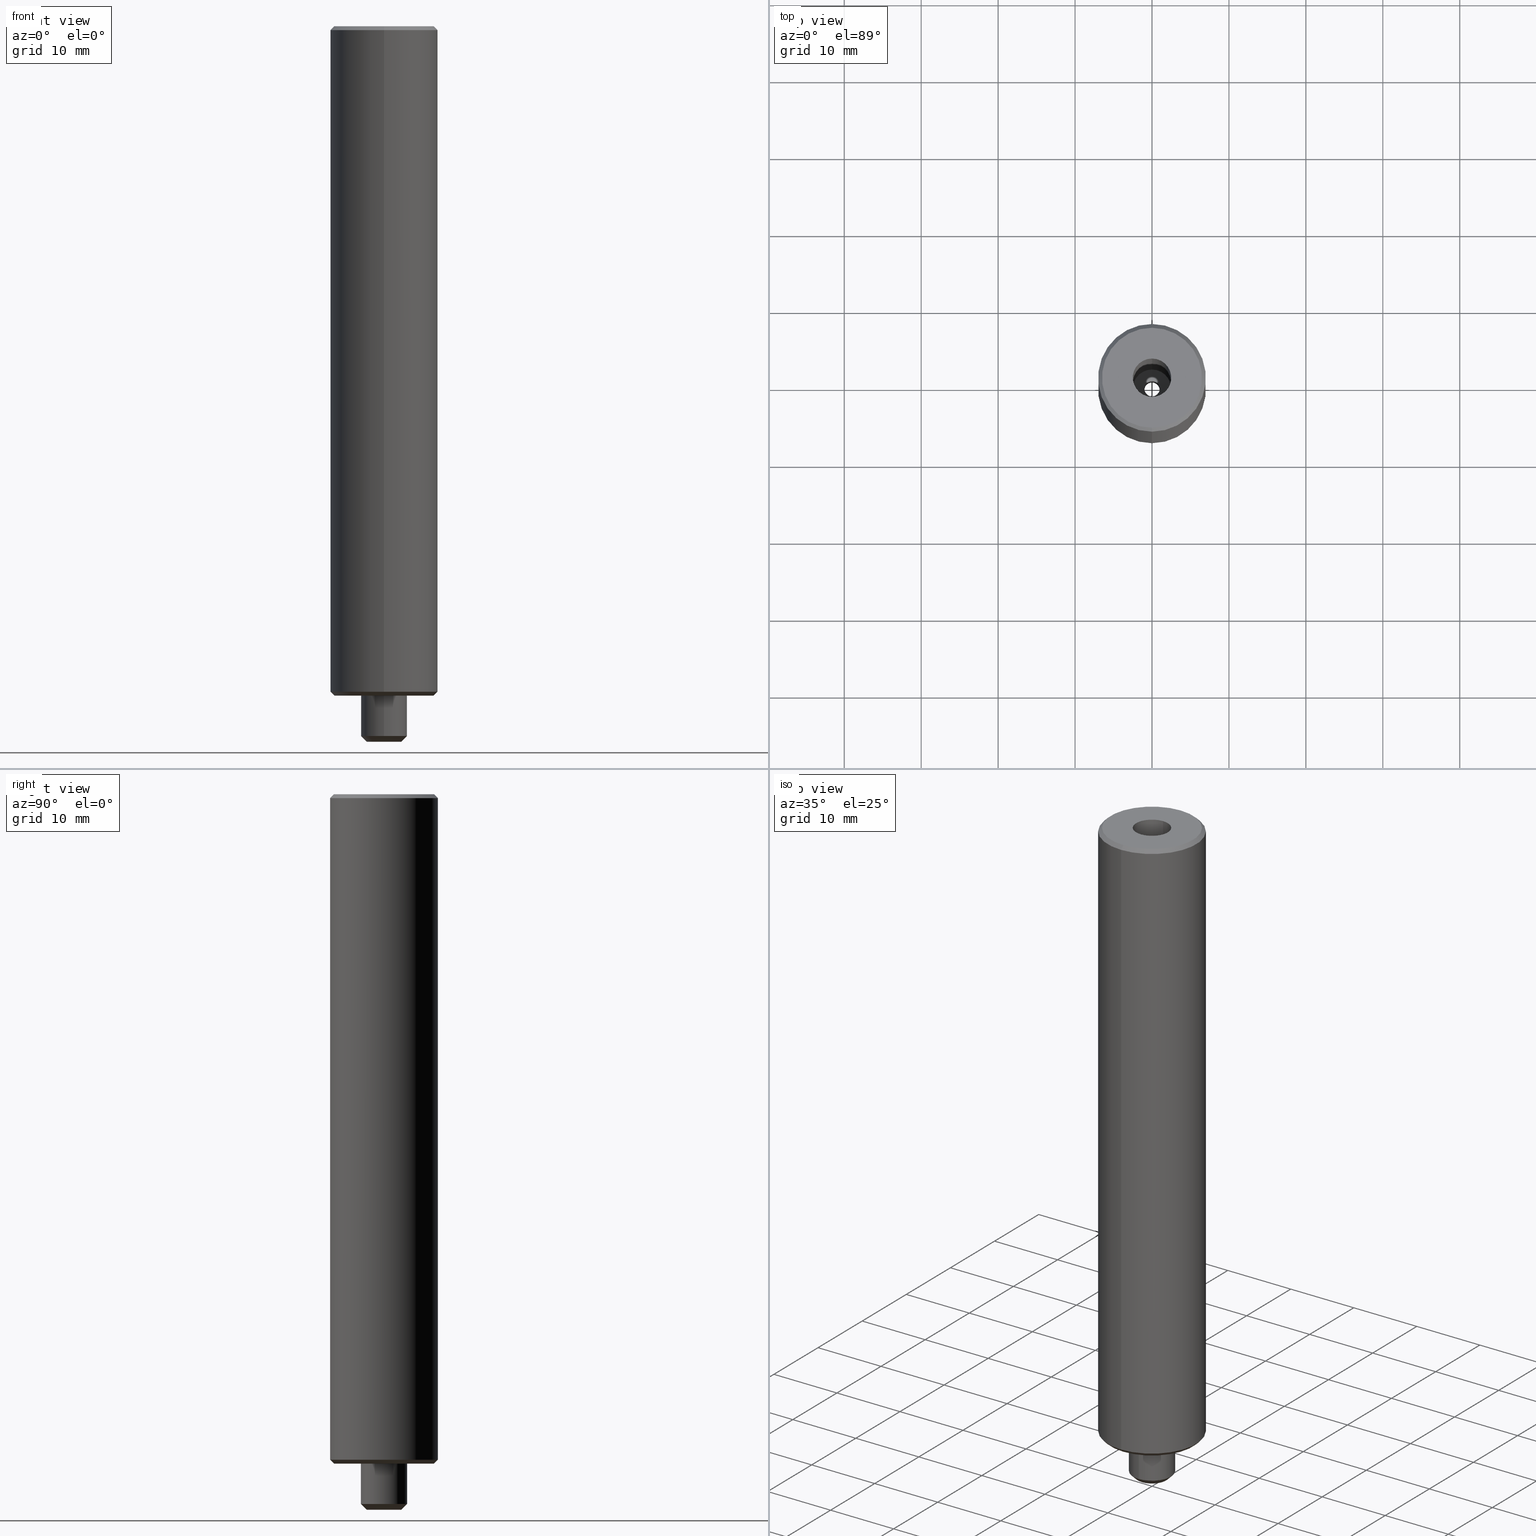
[diagram: canonical four-view strip — front | top / right | iso, engineering-drawing reading convention]
A machine part, canonical four-view strip (front | top / right | iso — engineering-drawing reading convention). The complete STEP part file that produces these views, byte-faithful:
ISO-10303-21;
HEADER;
FILE_DESCRIPTION(('no description'),'unknown implementation level');
FILE_NAME('975FEDEF-CCB9-4AB0-B80A-A7A66155BD4D_export.stp','  ',('CIMSOURCE GmbH'),('CADClick - KiM GmbH - www.kimweb.de'),'unknown preprocess','ACIS','unknown authorization');
FILE_SCHEMA(('automotive_design'));
ENDSEC;
DATA;
#1=MECHANICAL_DESIGN_GEOMETRIC_PRESENTATION_REPRESENTATION(' ',(#10,#11,#12,#13,#14,#15,#16,#17,#18,#19,#20,#21,#22,#23,#24,#25,#26,#27,#28,#29,#30,#31,#32,#33,#34,#35,#36,#37,#38,#39,#40,#41,#42,#43,#44,#45,#46,#47,#48,#49,#50,#51,#52,#53,#54,#55,#56,#57,#58,#59,#60,#61,#62,#63,#64,#65,#66,#67,#68,#69,#70,#71,#72,#73,#74,#75,#76,#77,#78,#79,#80,#81,#82,#83,#84,#85,#86,#87,#88,#89),#6);
#2=PRODUCT_DEFINITION_CONTEXT('',#90,'design');
#3=APPLICATION_PROTOCOL_DEFINITION('INTERNATIONAL STANDARD','automotive_design',1994,#90);
#4=PRODUCT_CATEGORY_RELATIONSHIP('NONE','NONE',#91,#92);
#5=SHAPE_DEFINITION_REPRESENTATION(#93,#94);
#6= (GEOMETRIC_REPRESENTATION_CONTEXT(3)GLOBAL_UNCERTAINTY_ASSIGNED_CONTEXT((#97))GLOBAL_UNIT_ASSIGNED_CONTEXT((#99,#100,#101))REPRESENTATION_CONTEXT('NONE','WORKSPACE'));
#10=STYLED_ITEM('',(#103),#104);
#11=STYLED_ITEM('',(#105),#106);
#12=STYLED_ITEM('',(#107),#108);
#13=STYLED_ITEM('',(#109),#110);
#14=STYLED_ITEM('',(#111),#112);
#15=STYLED_ITEM('',(#113),#114);
#16=STYLED_ITEM('',(#115),#116);
#17=STYLED_ITEM('',(#117),#118);
#18=STYLED_ITEM('',(#119),#120);
#19=STYLED_ITEM('',(#121),#122);
#20=STYLED_ITEM('',(#123),#124);
#21=STYLED_ITEM('',(#125),#126);
#22=STYLED_ITEM('',(#127),#128);
#23=STYLED_ITEM('',(#129),#130);
#24=STYLED_ITEM('',(#131),#132);
#25=STYLED_ITEM('',(#133),#134);
#26=STYLED_ITEM('',(#135),#136);
#27=STYLED_ITEM('',(#137),#138);
#28=STYLED_ITEM('',(#139),#140);
#29=STYLED_ITEM('',(#141),#142);
#30=STYLED_ITEM('',(#143),#144);
#31=STYLED_ITEM('',(#145),#146);
#32=STYLED_ITEM('',(#147),#148);
#33=STYLED_ITEM('',(#149),#150);
#34=STYLED_ITEM('',(#151),#152);
#35=STYLED_ITEM('',(#153),#154);
#36=STYLED_ITEM('',(#155),#156);
#37=STYLED_ITEM('',(#157),#158);
#38=STYLED_ITEM('',(#159),#160);
#39=STYLED_ITEM('',(#161),#162);
#40=STYLED_ITEM('',(#163),#164);
#41=STYLED_ITEM('',(#165),#166);
#42=STYLED_ITEM('',(#167),#168);
#43=STYLED_ITEM('',(#169),#170);
#44=STYLED_ITEM('',(#171),#172);
#45=STYLED_ITEM('',(#173),#174);
#46=STYLED_ITEM('',(#175),#176);
#47=STYLED_ITEM('',(#177),#178);
#48=STYLED_ITEM('',(#179),#180);
#49=STYLED_ITEM('',(#181),#182);
#50=STYLED_ITEM('',(#183),#184);
#51=STYLED_ITEM('',(#185),#186);
#52=STYLED_ITEM('',(#187),#188);
#53=STYLED_ITEM('',(#189),#190);
#54=STYLED_ITEM('',(#191),#192);
#55=STYLED_ITEM('',(#193),#194);
#56=STYLED_ITEM('',(#195),#196);
#57=STYLED_ITEM('',(#197),#198);
#58=STYLED_ITEM('',(#199),#200);
#59=STYLED_ITEM('',(#201),#202);
#60=STYLED_ITEM('',(#203),#204);
#61=STYLED_ITEM('',(#205),#206);
#62=STYLED_ITEM('',(#207),#208);
#63=STYLED_ITEM('',(#209),#210);
#64=STYLED_ITEM('',(#211),#212);
#65=STYLED_ITEM('',(#213),#214);
#66=STYLED_ITEM('',(#215),#216);
#67=STYLED_ITEM('',(#217),#218);
#68=STYLED_ITEM('',(#219),#220);
#69=STYLED_ITEM('',(#221),#222);
#70=STYLED_ITEM('',(#223),#224);
#71=STYLED_ITEM('',(#225),#226);
#72=STYLED_ITEM('',(#227),#228);
#73=STYLED_ITEM('',(#229),#230);
#74=STYLED_ITEM('',(#231),#232);
#75=STYLED_ITEM('',(#233),#234);
#76=STYLED_ITEM('',(#235),#236);
#77=STYLED_ITEM('',(#237),#238);
#78=STYLED_ITEM('',(#239),#240);
#79=STYLED_ITEM('',(#241),#242);
#80=STYLED_ITEM('',(#243),#244);
#81=STYLED_ITEM('',(#245),#246);
#82=STYLED_ITEM('',(#247),#248);
#83=STYLED_ITEM('',(#249),#250);
#84=STYLED_ITEM('',(#251),#252);
#85=STYLED_ITEM('',(#253),#254);
#86=STYLED_ITEM('',(#255),#256);
#87=STYLED_ITEM('',(#257),#258);
#88=STYLED_ITEM('',(#259),#260);
#89=STYLED_ITEM('',(#261),#262);
#90=APPLICATION_CONTEXT(' ');
#91=PRODUCT_CATEGORY('part','NONE');
#92=PRODUCT_RELATED_PRODUCT_CATEGORY('detail',' ',(#263));
#93=PRODUCT_DEFINITION_SHAPE('NONE','NONE',#264);
#94=ADVANCED_BREP_SHAPE_REPRESENTATION('NONE',(#228,#265),#6);
#97=UNCERTAINTY_MEASURE_WITH_UNIT(LENGTH_MEASURE(1.0E-006),#99,'','');
#99= (CONVERSION_BASED_UNIT('MILLIMETRE',#268)LENGTH_UNIT()NAMED_UNIT(#271));
#100= (NAMED_UNIT(#273)PLANE_ANGLE_UNIT()SI_UNIT($,.RADIAN.));
#101= (NAMED_UNIT(#273)SOLID_ANGLE_UNIT()SI_UNIT($,.STERADIAN.));
#103=PRESENTATION_STYLE_ASSIGNMENT((#279));
#104=EDGE_CURVE('NONE',#134,#198,#280,.T.);
#105=PRESENTATION_STYLE_ASSIGNMENT((#281));
#106=VERTEX_POINT('NONE',#282);
#107=PRESENTATION_STYLE_ASSIGNMENT((#283));
#108=EDGE_CURVE('NONE',#128,#138,#284,.T.);
#109=PRESENTATION_STYLE_ASSIGNMENT((#285));
#110=EDGE_CURVE('NONE',#152,#170,#286,.T.);
#111=PRESENTATION_STYLE_ASSIGNMENT((#287));
#112=ADVANCED_FACE('NONE',(#288),#289,.F.);
#113=PRESENTATION_STYLE_ASSIGNMENT((#290));
#114=ADVANCED_FACE('NONE',(#291),#292,.F.);
#115=PRESENTATION_STYLE_ASSIGNMENT((#293));
#116=EDGE_CURVE('NONE',#156,#186,#294,.T.);
#117=PRESENTATION_STYLE_ASSIGNMENT((#295));
#118=ADVANCED_FACE('NONE',(#296,#297),#298,.F.);
#119=PRESENTATION_STYLE_ASSIGNMENT((#299));
#120=EDGE_CURVE('NONE',#166,#248,#300,.T.);
#121=PRESENTATION_STYLE_ASSIGNMENT((#301));
#122=EDGE_CURVE('NONE',#254,#238,#302,.T.);
#123=PRESENTATION_STYLE_ASSIGNMENT((#303));
#124=ADVANCED_FACE('NONE',(#304),#305,.T.);
#125=PRESENTATION_STYLE_ASSIGNMENT((#306));
#126=EDGE_CURVE('NONE',#170,#212,#307,.T.);
#127=PRESENTATION_STYLE_ASSIGNMENT((#308));
#128=VERTEX_POINT('NONE',#309);
#129=PRESENTATION_STYLE_ASSIGNMENT((#310));
#130=EDGE_CURVE('NONE',#244,#190,#311,.T.);
#131=PRESENTATION_STYLE_ASSIGNMENT((#312));
#132=EDGE_CURVE('NONE',#262,#260,#313,.T.);
#133=PRESENTATION_STYLE_ASSIGNMENT((#314));
#134=VERTEX_POINT('NONE',#315);
#135=PRESENTATION_STYLE_ASSIGNMENT((#316));
#136=ADVANCED_FACE('NONE',(#317),#318,.T.);
#137=PRESENTATION_STYLE_ASSIGNMENT((#319));
#138=VERTEX_POINT('NONE',#320);
#139=PRESENTATION_STYLE_ASSIGNMENT((#321));
#140=EDGE_CURVE('NONE',#138,#254,#322,.T.);
#141=PRESENTATION_STYLE_ASSIGNMENT((#323));
#142=EDGE_CURVE('NONE',#190,#166,#324,.T.);
#143=PRESENTATION_STYLE_ASSIGNMENT((#325));
#144=EDGE_CURVE('NONE',#160,#248,#326,.T.);
#145=PRESENTATION_STYLE_ASSIGNMENT((#327));
#146=ADVANCED_FACE('NONE',(#328),#329,.T.);
#147=PRESENTATION_STYLE_ASSIGNMENT((#330));
#148=ADVANCED_FACE('NONE',(#331),#332,.T.);
#149=PRESENTATION_STYLE_ASSIGNMENT((#333));
#150=ADVANCED_FACE('NONE',(#334),#335,.F.);
#151=PRESENTATION_STYLE_ASSIGNMENT((#336));
#152=VERTEX_POINT('NONE',#337);
#153=PRESENTATION_STYLE_ASSIGNMENT((#338));
#154=EDGE_CURVE('NONE',#212,#254,#339,.T.);
#155=PRESENTATION_STYLE_ASSIGNMENT((#340));
#156=VERTEX_POINT('NONE',#341);
#157=PRESENTATION_STYLE_ASSIGNMENT((#342));
#158=VERTEX_POINT('NONE',#343);
#159=PRESENTATION_STYLE_ASSIGNMENT((#344));
#160=VERTEX_POINT('NONE',#345);
#161=PRESENTATION_STYLE_ASSIGNMENT((#346));
#162=ADVANCED_FACE('NONE',(#347,#348),#349,.F.);
#163=PRESENTATION_STYLE_ASSIGNMENT((#350));
#164=EDGE_CURVE('NONE',#262,#134,#351,.T.);
#165=PRESENTATION_STYLE_ASSIGNMENT((#352));
#166=VERTEX_POINT('NONE',#353);
#167=PRESENTATION_STYLE_ASSIGNMENT((#354));
#168=EDGE_CURVE('NONE',#152,#176,#355,.T.);
#169=PRESENTATION_STYLE_ASSIGNMENT((#356));
#170=VERTEX_POINT('NONE',#357);
#171=PRESENTATION_STYLE_ASSIGNMENT((#358));
#172=ADVANCED_FACE('NONE',(#359),#360,.F.);
#173=PRESENTATION_STYLE_ASSIGNMENT((#361));
#174=ADVANCED_FACE('NONE',(#362,#363),#364,.F.);
#175=PRESENTATION_STYLE_ASSIGNMENT((#365));
#176=VERTEX_POINT('NONE',#366);
#177=PRESENTATION_STYLE_ASSIGNMENT((#367));
#178=EDGE_CURVE('NONE',#198,#134,#368,.T.);
#179=PRESENTATION_STYLE_ASSIGNMENT((#369));
#180=ADVANCED_FACE('NONE',(#370),#371,.T.);
#181=PRESENTATION_STYLE_ASSIGNMENT((#372));
#182=EDGE_CURVE('NONE',#234,#260,#373,.T.);
#183=PRESENTATION_STYLE_ASSIGNMENT((#374));
#184=EDGE_CURVE('NONE',#186,#156,#375,.T.);
#185=PRESENTATION_STYLE_ASSIGNMENT((#376));
#186=VERTEX_POINT('NONE',#377);
#187=PRESENTATION_STYLE_ASSIGNMENT((#378));
#188=ADVANCED_FACE('NONE',(#379),#380,.F.);
#189=PRESENTATION_STYLE_ASSIGNMENT((#381));
#190=VERTEX_POINT('NONE',#382);
#191=PRESENTATION_STYLE_ASSIGNMENT((#383));
#192=EDGE_CURVE('NONE',#138,#128,#384,.T.);
#193=PRESENTATION_STYLE_ASSIGNMENT((#385));
#194=EDGE_CURVE('NONE',#128,#238,#386,.T.);
#195=PRESENTATION_STYLE_ASSIGNMENT((#387));
#196=EDGE_CURVE('NONE',#260,#262,#388,.T.);
#197=PRESENTATION_STYLE_ASSIGNMENT((#389));
#198=VERTEX_POINT('NONE',#390);
#199=PRESENTATION_STYLE_ASSIGNMENT((#391));
#200=EDGE_CURVE('NONE',#260,#198,#392,.T.);
#201=PRESENTATION_STYLE_ASSIGNMENT((#393));
#202=EDGE_CURVE('NONE',#238,#254,#394,.T.);
#203=PRESENTATION_STYLE_ASSIGNMENT((#395));
#204=EDGE_CURVE('NONE',#176,#238,#396,.T.);
#205=PRESENTATION_STYLE_ASSIGNMENT((#397));
#206=EDGE_CURVE('NONE',#248,#160,#398,.T.);
#207=PRESENTATION_STYLE_ASSIGNMENT((#399));
#208=ADVANCED_FACE('NONE',(#400),#401,.T.);
#209=PRESENTATION_STYLE_ASSIGNMENT((#402));
#210=EDGE_CURVE('NONE',#106,#262,#403,.T.);
#211=PRESENTATION_STYLE_ASSIGNMENT((#404));
#212=VERTEX_POINT('NONE',#405);
#213=PRESENTATION_STYLE_ASSIGNMENT((#406));
#214=ADVANCED_FACE('NONE',(#407),#408,.T.);
#215=PRESENTATION_STYLE_ASSIGNMENT((#409));
#216=EDGE_CURVE('NONE',#190,#160,#410,.T.);
#217=PRESENTATION_STYLE_ASSIGNMENT((#411));
#218=EDGE_CURVE('NONE',#158,#166,#412,.T.);
#219=PRESENTATION_STYLE_ASSIGNMENT((#413));
#220=EDGE_CURVE('NONE',#234,#106,#414,.T.);
#221=PRESENTATION_STYLE_ASSIGNMENT((#415));
#222=ADVANCED_FACE('NONE',(#416),#417,.T.);
#223=PRESENTATION_STYLE_ASSIGNMENT((#418));
#224=EDGE_CURVE('NONE',#244,#158,#419,.T.);
#225=PRESENTATION_STYLE_ASSIGNMENT((#420));
#226=EDGE_CURVE('NONE',#212,#176,#421,.T.);
#227=PRESENTATION_STYLE_ASSIGNMENT((#422));
#228=MANIFOLD_SOLID_BREP('NONE',#423);
#229=PRESENTATION_STYLE_ASSIGNMENT((#424));
#230=EDGE_CURVE('NONE',#176,#212,#425,.T.);
#231=PRESENTATION_STYLE_ASSIGNMENT((#426));
#232=EDGE_CURVE('NONE',#166,#190,#427,.T.);
#233=PRESENTATION_STYLE_ASSIGNMENT((#428));
#234=VERTEX_POINT('NONE',#429);
#235=PRESENTATION_STYLE_ASSIGNMENT((#430));
#236=ADVANCED_FACE('NONE',(#431),#432,.T.);
#237=PRESENTATION_STYLE_ASSIGNMENT((#433));
#238=VERTEX_POINT('NONE',#434);
#239=PRESENTATION_STYLE_ASSIGNMENT((#435));
#240=EDGE_CURVE('NONE',#106,#234,#436,.T.);
#241=PRESENTATION_STYLE_ASSIGNMENT((#437));
#242=ADVANCED_FACE('NONE',(#438),#439,.T.);
#243=PRESENTATION_STYLE_ASSIGNMENT((#440));
#244=VERTEX_POINT('NONE',#441);
#245=PRESENTATION_STYLE_ASSIGNMENT((#442));
#246=EDGE_CURVE('NONE',#170,#152,#443,.T.);
#247=PRESENTATION_STYLE_ASSIGNMENT((#444));
#248=VERTEX_POINT('NONE',#445);
#249=PRESENTATION_STYLE_ASSIGNMENT((#446));
#250=EDGE_CURVE('NONE',#248,#156,#447,.T.);
#251=PRESENTATION_STYLE_ASSIGNMENT((#448));
#252=EDGE_CURVE('NONE',#160,#186,#449,.T.);
#253=PRESENTATION_STYLE_ASSIGNMENT((#450));
#254=VERTEX_POINT('NONE',#451);
#255=PRESENTATION_STYLE_ASSIGNMENT((#452));
#256=ADVANCED_FACE('NONE',(#453),#454,.F.);
#257=PRESENTATION_STYLE_ASSIGNMENT((#455));
#258=EDGE_CURVE('NONE',#158,#244,#456,.T.);
#259=PRESENTATION_STYLE_ASSIGNMENT((#457));
#260=VERTEX_POINT('NONE',#458);
#261=PRESENTATION_STYLE_ASSIGNMENT((#459));
#262=VERTEX_POINT('NONE',#460);
#263=PRODUCT('NONE','NONE','PART-NONE-DESC',(#461));
#264=PRODUCT_DEFINITION('NONE','NONE',#462,#2);
#265=AXIS2_PLACEMENT_3D('',#463,#464,#465);
#268=LENGTH_MEASURE_WITH_UNIT(LENGTH_MEASURE(1.0),#466);
#271=DIMENSIONAL_EXPONENTS(1.0,0.0,0.0,0.0,0.0,0.0,0.0);
#273=DIMENSIONAL_EXPONENTS(0.0,0.0,0.0,0.0,0.0,0.0,0.0);
#279=CURVE_STYLE('',#467,POSITIVE_LENGTH_MEASURE(1.0E-006),#468);
#280=CIRCLE('',#469,3.0);
#281=POINT_STYLE(' ',#470,POSITIVE_LENGTH_MEASURE(1.0E-006),#471);
#282=CARTESIAN_POINT('',(0.0,2.25,-6.0));
#283=CURVE_STYLE('',#472,POSITIVE_LENGTH_MEASURE(1.0E-006),#473);
#284=CIRCLE('',#474,6.49999999999999);
#285=CURVE_STYLE('',#475,POSITIVE_LENGTH_MEASURE(1.0E-006),#476);
#286=CIRCLE('',#477,6.5);
#287=SURFACE_STYLE_USAGE(.BOTH.,#478);
#288=FACE_OUTER_BOUND('',#479,.T.);
#289=CYLINDRICAL_SURFACE('',#480,1.0);
#290=SURFACE_STYLE_USAGE(.BOTH.,#481);
#291=FACE_OUTER_BOUND('',#482,.T.);
#292=CONICAL_SURFACE('',#483,2.5,1.22173047639603);
#293=CURVE_STYLE('',#484,POSITIVE_LENGTH_MEASURE(1.0E-006),#485);
#294=CIRCLE('',#486,2.5);
#295=SURFACE_STYLE_USAGE(.BOTH.,#487);
#296=FACE_OUTER_BOUND('',#488,.T.);
#297=FACE_BOUND('',#489,.T.);
#298=PLANE('',#490);
#299=CURVE_STYLE('',#491,POSITIVE_LENGTH_MEASURE(1.0E-006),#492);
#300=LINE('',#493,#494);
#301=CURVE_STYLE('',#495,POSITIVE_LENGTH_MEASURE(1.0E-006),#496);
#302=CIRCLE('',#497,6.99999999999999);
#303=SURFACE_STYLE_USAGE(.BOTH.,#498);
#304=FACE_OUTER_BOUND('',#499,.T.);
#305=CONICAL_SURFACE('',#500,2.25,0.785398163397453);
#306=CURVE_STYLE('',#501,POSITIVE_LENGTH_MEASURE(1.0E-006),#502);
#307=LINE('',#503,#504);
#308=POINT_STYLE(' ',#505,POSITIVE_LENGTH_MEASURE(1.0E-006),#506);
#309=CARTESIAN_POINT('',(-8.26609288830104E-016,6.49999999999999,87.0));
#310=CURVE_STYLE('',#507,POSITIVE_LENGTH_MEASURE(1.0E-006),#508);
#311=LINE('',#509,#510);
#312=CURVE_STYLE('',#511,POSITIVE_LENGTH_MEASURE(1.0E-006),#512);
#313=CIRCLE('',#513,3.0);
#314=POINT_STYLE(' ',#514,POSITIVE_LENGTH_MEASURE(1.0E-006),#515);
#315=CARTESIAN_POINT('',(0.0,3.0,0.0));
#316=SURFACE_STYLE_USAGE(.BOTH.,#516);
#317=FACE_OUTER_BOUND('',#517,.T.);
#318=CYLINDRICAL_SURFACE('',#518,6.99999999999999);
#319=POINT_STYLE(' ',#519,POSITIVE_LENGTH_MEASURE(1.0E-006),#520);
#320=CARTESIAN_POINT('',(0.0,-6.49999999999999,87.0));
#321=CURVE_STYLE('',#521,POSITIVE_LENGTH_MEASURE(1.0E-006),#522);
#322=LINE('',#523,#524);
#323=CURVE_STYLE('',#525,POSITIVE_LENGTH_MEASURE(1.0E-006),#526);
#324=CIRCLE('',#527,1.0);
#325=CURVE_STYLE('',#528,POSITIVE_LENGTH_MEASURE(1.0E-006),#529);
#326=CIRCLE('',#530,2.5);
#327=SURFACE_STYLE_USAGE(.BOTH.,#531);
#328=FACE_OUTER_BOUND('',#532,.T.);
#329=CYLINDRICAL_SURFACE('',#533,6.99999999999999);
#330=SURFACE_STYLE_USAGE(.BOTH.,#534);
#331=FACE_OUTER_BOUND('',#535,.T.);
#332=CONICAL_SURFACE('',#536,6.49999999999999,0.785398163397438);
#333=SURFACE_STYLE_USAGE(.BOTH.,#537);
#334=FACE_OUTER_BOUND('',#538,.T.);
#335=CYLINDRICAL_SURFACE('',#539,2.5);
#336=POINT_STYLE(' ',#540,POSITIVE_LENGTH_MEASURE(1.0E-006),#541);
#337=CARTESIAN_POINT('',(0.0,6.5,0.0));
#338=CURVE_STYLE('',#542,POSITIVE_LENGTH_MEASURE(1.0E-006),#543);
#339=LINE('',#544,#545);
#340=POINT_STYLE(' ',#546,POSITIVE_LENGTH_MEASURE(1.0E-006),#547);
#341=CARTESIAN_POINT('',(-3.06151588455594E-016,-2.5,87.0));
#342=POINT_STYLE(' ',#548,POSITIVE_LENGTH_MEASURE(1.0E-006),#549);
#343=CARTESIAN_POINT('',(-1.22460635382238E-016,-1.0,-6.0));
#344=POINT_STYLE(' ',#550,POSITIVE_LENGTH_MEASURE(1.0E-006),#551);
#345=CARTESIAN_POINT('',(0.0,2.5,5.0));
#346=SURFACE_STYLE_USAGE(.BOTH.,#552);
#347=FACE_OUTER_BOUND('',#553,.T.);
#348=FACE_BOUND('',#554,.T.);
#349=PLANE('',#555);
#350=CURVE_STYLE('',#556,POSITIVE_LENGTH_MEASURE(1.0E-006),#557);
#351=LINE('',#558,#559);
#352=POINT_STYLE(' ',#560,POSITIVE_LENGTH_MEASURE(1.0E-006),#561);
#353=CARTESIAN_POINT('',(-1.22460635382238E-016,-1.0,4.4540446486007));
#354=CURVE_STYLE('',#562,POSITIVE_LENGTH_MEASURE(1.0E-006),#563);
#355=LINE('',#564,#565);
#356=POINT_STYLE(' ',#566,POSITIVE_LENGTH_MEASURE(1.0E-006),#567);
#357=CARTESIAN_POINT('',(-8.26609288830105E-016,-6.5,0.0));
#358=SURFACE_STYLE_USAGE(.BOTH.,#568);
#359=FACE_OUTER_BOUND('',#569,.T.);
#360=CYLINDRICAL_SURFACE('',#570,1.0);
#361=SURFACE_STYLE_USAGE(.BOTH.,#571);
#362=FACE_OUTER_BOUND('',#572,.T.);
#363=FACE_BOUND('',#573,.T.);
#364=PLANE('',#574);
#365=POINT_STYLE(' ',#575,POSITIVE_LENGTH_MEASURE(1.0E-006),#576);
#366=CARTESIAN_POINT('',(0.0,6.99999999999999,0.499999999999994));
#367=CURVE_STYLE('',#577,POSITIVE_LENGTH_MEASURE(1.0E-006),#578);
#368=CIRCLE('',#579,3.0);
#369=SURFACE_STYLE_USAGE(.BOTH.,#580);
#370=FACE_OUTER_BOUND('',#581,.T.);
#371=CYLINDRICAL_SURFACE('',#582,3.0);
#372=CURVE_STYLE('',#583,POSITIVE_LENGTH_MEASURE(1.0E-006),#584);
#373=LINE('',#585,#586);
#374=CURVE_STYLE('',#587,POSITIVE_LENGTH_MEASURE(1.0E-006),#588);
#375=CIRCLE('',#589,2.5);
#376=POINT_STYLE(' ',#590,POSITIVE_LENGTH_MEASURE(1.0E-006),#591);
#377=CARTESIAN_POINT('',(0.0,2.5,87.0));
#378=SURFACE_STYLE_USAGE(.BOTH.,#592);
#379=FACE_OUTER_BOUND('',#593,.T.);
#380=CYLINDRICAL_SURFACE('',#594,2.5);
#381=POINT_STYLE(' ',#595,POSITIVE_LENGTH_MEASURE(1.0E-006),#596);
#382=CARTESIAN_POINT('',(0.0,1.0,4.4540446486007));
#383=CURVE_STYLE('',#597,POSITIVE_LENGTH_MEASURE(1.0E-006),#598);
#384=CIRCLE('',#599,6.49999999999999);
#385=CURVE_STYLE('',#600,POSITIVE_LENGTH_MEASURE(1.0E-006),#601);
#386=LINE('',#602,#603);
#387=CURVE_STYLE('',#604,POSITIVE_LENGTH_MEASURE(1.0E-006),#605);
#388=CIRCLE('',#606,3.0);
#389=POINT_STYLE(' ',#607,POSITIVE_LENGTH_MEASURE(1.0E-006),#608);
#390=CARTESIAN_POINT('',(-3.67381906146713E-016,-3.0,0.0));
#391=CURVE_STYLE('',#609,POSITIVE_LENGTH_MEASURE(1.0E-006),#610);
#392=LINE('',#611,#612);
#393=CURVE_STYLE('',#613,POSITIVE_LENGTH_MEASURE(1.0E-006),#614);
#394=CIRCLE('',#615,6.99999999999999);
#395=CURVE_STYLE('',#616,POSITIVE_LENGTH_MEASURE(1.0E-006),#617);
#396=LINE('',#618,#619);
#397=CURVE_STYLE('',#620,POSITIVE_LENGTH_MEASURE(1.0E-006),#621);
#398=CIRCLE('',#622,2.5);
#399=SURFACE_STYLE_USAGE(.BOTH.,#623);
#400=FACE_OUTER_BOUND('',#624,.T.);
#401=CYLINDRICAL_SURFACE('',#625,3.0);
#402=CURVE_STYLE('',#626,POSITIVE_LENGTH_MEASURE(1.0E-006),#627);
#403=LINE('',#628,#629);
#404=POINT_STYLE(' ',#630,POSITIVE_LENGTH_MEASURE(1.0E-006),#631);
#405=CARTESIAN_POINT('',(-8.57224447675663E-016,-6.99999999999999,0.499999999999994));
#406=SURFACE_STYLE_USAGE(.BOTH.,#632);
#407=FACE_OUTER_BOUND('',#633,.T.);
#408=CONICAL_SURFACE('',#634,6.99999999999999,0.785398163397444);
#409=CURVE_STYLE('',#635,POSITIVE_LENGTH_MEASURE(1.0E-006),#636);
#410=LINE('',#637,#638);
#411=CURVE_STYLE('',#639,POSITIVE_LENGTH_MEASURE(1.0E-006),#640);
#412=LINE('',#641,#642);
#413=CURVE_STYLE('',#643,POSITIVE_LENGTH_MEASURE(1.0E-006),#644);
#414=CIRCLE('',#645,2.25);
#415=SURFACE_STYLE_USAGE(.BOTH.,#646);
#416=FACE_OUTER_BOUND('',#647,.T.);
#417=CONICAL_SURFACE('',#648,6.99999999999999,0.785398163397444);
#418=CURVE_STYLE('',#649,POSITIVE_LENGTH_MEASURE(1.0E-006),#650);
#419=CIRCLE('',#651,1.0);
#420=CURVE_STYLE('',#652,POSITIVE_LENGTH_MEASURE(1.0E-006),#653);
#421=CIRCLE('',#654,6.99999999999999);
#422=SURFACE_STYLE_USAGE(.BOTH.,#655);
#423=CLOSED_SHELL('',(#148,#222,#146,#188,#256,#172,#242,#180,#162,#208,#124,#118,#112,#114,#150,#174,#136,#214,#236));
#424=CURVE_STYLE('',#656,POSITIVE_LENGTH_MEASURE(1.0E-006),#657);
#425=CIRCLE('',#658,6.99999999999999);
#426=CURVE_STYLE('',#659,POSITIVE_LENGTH_MEASURE(1.0E-006),#660);
#427=CIRCLE('',#661,1.0);
#428=POINT_STYLE(' ',#662,POSITIVE_LENGTH_MEASURE(1.0E-006),#663);
#429=CARTESIAN_POINT('',(-3.21459167878374E-016,-2.25,-6.0));
#430=SURFACE_STYLE_USAGE(.BOTH.,#664);
#431=FACE_OUTER_BOUND('',#665,.T.);
#432=CONICAL_SURFACE('',#666,6.49999999999999,0.785398163397438);
#433=POINT_STYLE(' ',#667,POSITIVE_LENGTH_MEASURE(1.0E-006),#668);
#434=CARTESIAN_POINT('',(0.0,6.99999999999999,86.5));
#435=CURVE_STYLE('',#669,POSITIVE_LENGTH_MEASURE(1.0E-006),#670);
#436=CIRCLE('',#671,2.25);
#437=SURFACE_STYLE_USAGE(.BOTH.,#672);
#438=FACE_OUTER_BOUND('',#673,.T.);
#439=CONICAL_SURFACE('',#674,2.25,0.785398163397453);
#440=POINT_STYLE(' ',#675,POSITIVE_LENGTH_MEASURE(1.0E-006),#676);
#441=CARTESIAN_POINT('',(0.0,1.0,-6.0));
#442=CURVE_STYLE('',#677,POSITIVE_LENGTH_MEASURE(1.0E-006),#678);
#443=CIRCLE('',#679,6.5);
#444=POINT_STYLE(' ',#680,POSITIVE_LENGTH_MEASURE(1.0E-006),#681);
#445=CARTESIAN_POINT('',(-3.06151588455594E-016,-2.5,5.0));
#446=CURVE_STYLE('',#682,POSITIVE_LENGTH_MEASURE(1.0E-006),#683);
#447=LINE('',#684,#685);
#448=CURVE_STYLE('',#686,POSITIVE_LENGTH_MEASURE(1.0E-006),#687);
#449=LINE('',#688,#689);
#450=POINT_STYLE(' ',#690,POSITIVE_LENGTH_MEASURE(1.0E-006),#691);
#451=CARTESIAN_POINT('',(-8.57224447675663E-016,-6.99999999999999,86.5));
#452=SURFACE_STYLE_USAGE(.BOTH.,#692);
#453=FACE_OUTER_BOUND('',#693,.T.);
#454=CONICAL_SURFACE('',#694,2.5,1.22173047639603);
#455=CURVE_STYLE('',#695,POSITIVE_LENGTH_MEASURE(1.0E-006),#696);
#456=CIRCLE('',#697,1.0);
#457=POINT_STYLE(' ',#698,POSITIVE_LENGTH_MEASURE(1.0E-006),#699);
#458=CARTESIAN_POINT('',(-3.67381906146713E-016,-3.0,-5.25));
#459=POINT_STYLE(' ',#700,POSITIVE_LENGTH_MEASURE(1.0E-006),#701);
#460=CARTESIAN_POINT('',(0.0,3.0,-5.25));
#461=PRODUCT_CONTEXT('',#90,'mechanical');
#462=PRODUCT_DEFINITION_FORMATION_WITH_SPECIFIED_SOURCE(' ','NONE',#263,.NOT_KNOWN.);
#463=CARTESIAN_POINT('',(0.0,0.0,0.0));
#464=DIRECTION('',(0.0,0.0,1.0));
#465=DIRECTION('',(1.0,0.0,0.0));
#466= (NAMED_UNIT(#271)LENGTH_UNIT()SI_UNIT(.MILLI.,.METRE.));
#467=DRAUGHTING_PRE_DEFINED_CURVE_FONT('continuous');
#468=COLOUR_RGB('', 0.5, 0.5, 0.5);
#469=AXIS2_PLACEMENT_3D('',#703,#704,#705);
#470=PRE_DEFINED_MARKER('');
#471=COLOUR_RGB('', 0.5, 0.5, 0.5);
#472=DRAUGHTING_PRE_DEFINED_CURVE_FONT('continuous');
#473=COLOUR_RGB('', 0.5, 0.5, 0.5);
#474=AXIS2_PLACEMENT_3D('',#706,#707,#708);
#475=DRAUGHTING_PRE_DEFINED_CURVE_FONT('continuous');
#476=COLOUR_RGB('', 0.5, 0.5, 0.5);
#477=AXIS2_PLACEMENT_3D('',#709,#710,#711);
#478=SURFACE_SIDE_STYLE('',(#712));
#479=EDGE_LOOP('',(#713,#714,#715,#716));
#480=AXIS2_PLACEMENT_3D('',#717,#718,#719);
#481=SURFACE_SIDE_STYLE('',(#720));
#482=EDGE_LOOP('',(#721,#722,#723,#724));
#483=AXIS2_PLACEMENT_3D('',#725,#726,#727);
#484=DRAUGHTING_PRE_DEFINED_CURVE_FONT('continuous');
#485=COLOUR_RGB('', 0.5, 0.5, 0.5);
#486=AXIS2_PLACEMENT_3D('',#728,#729,#730);
#487=SURFACE_SIDE_STYLE('',(#731));
#488=EDGE_LOOP('',(#732,#733));
#489=EDGE_LOOP('',(#734,#735));
#490=AXIS2_PLACEMENT_3D('',#736,#737,#738);
#491=DRAUGHTING_PRE_DEFINED_CURVE_FONT('continuous');
#492=COLOUR_RGB('', 0.5, 0.5, 0.5);
#493=CARTESIAN_POINT('',(-3.06151588455594E-016,-2.5,5.0));
#494=VECTOR('',#739,1000.0);
#495=DRAUGHTING_PRE_DEFINED_CURVE_FONT('continuous');
#496=COLOUR_RGB('', 0.5, 0.5, 0.5);
#497=AXIS2_PLACEMENT_3D('',#740,#741,#742);
#498=SURFACE_SIDE_STYLE('',(#743));
#499=EDGE_LOOP('',(#744,#745,#746,#747));
#500=AXIS2_PLACEMENT_3D('',#748,#749,#750);
#501=DRAUGHTING_PRE_DEFINED_CURVE_FONT('continuous');
#502=COLOUR_RGB('', 0.5, 0.5, 0.5);
#503=CARTESIAN_POINT('',(-8.57224447675663E-016,-6.99999999999999,0.499999999999994));
#504=VECTOR('',#751,1000.0);
#505=PRE_DEFINED_MARKER('');
#506=COLOUR_RGB('', 0.5, 0.5, 0.5);
#507=DRAUGHTING_PRE_DEFINED_CURVE_FONT('continuous');
#508=COLOUR_RGB('', 0.5, 0.5, 0.5);
#509=CARTESIAN_POINT('',(0.0,1.0,44.3839792060492));
#510=VECTOR('',#752,1000.0);
#511=DRAUGHTING_PRE_DEFINED_CURVE_FONT('continuous');
#512=COLOUR_RGB('', 0.5, 0.5, 0.5);
#513=AXIS2_PLACEMENT_3D('',#753,#754,#755);
#514=PRE_DEFINED_MARKER('');
#515=COLOUR_RGB('', 0.5, 0.5, 0.5);
#516=SURFACE_SIDE_STYLE('',(#756));
#517=EDGE_LOOP('',(#757,#758,#759,#760));
#518=AXIS2_PLACEMENT_3D('',#761,#762,#763);
#519=PRE_DEFINED_MARKER('');
#520=COLOUR_RGB('', 0.5, 0.5, 0.5);
#521=DRAUGHTING_PRE_DEFINED_CURVE_FONT('continuous');
#522=COLOUR_RGB('', 0.5, 0.5, 0.5);
#523=CARTESIAN_POINT('',(0.0,-6.49999999999999,87.0));
#524=VECTOR('',#764,1000.0);
#525=DRAUGHTING_PRE_DEFINED_CURVE_FONT('continuous');
#526=COLOUR_RGB('', 0.5, 0.5, 0.5);
#527=AXIS2_PLACEMENT_3D('',#765,#766,#767);
#528=DRAUGHTING_PRE_DEFINED_CURVE_FONT('continuous');
#529=COLOUR_RGB('', 0.5, 0.5, 0.5);
#530=AXIS2_PLACEMENT_3D('',#768,#769,#770);
#531=SURFACE_SIDE_STYLE('',(#771));
#532=EDGE_LOOP('',(#772,#773,#774,#775));
#533=AXIS2_PLACEMENT_3D('',#776,#777,#778);
#534=SURFACE_SIDE_STYLE('',(#779));
#535=EDGE_LOOP('',(#780,#781,#782,#783));
#536=AXIS2_PLACEMENT_3D('',#784,#785,#786);
#537=SURFACE_SIDE_STYLE('',(#787));
#538=EDGE_LOOP('',(#788,#789,#790,#791));
#539=AXIS2_PLACEMENT_3D('',#792,#793,#794);
#540=PRE_DEFINED_MARKER('');
#541=COLOUR_RGB('', 0.5, 0.5, 0.5);
#542=DRAUGHTING_PRE_DEFINED_CURVE_FONT('continuous');
#543=COLOUR_RGB('', 0.5, 0.5, 0.5);
#544=CARTESIAN_POINT('',(-8.57224447675663E-016,-6.99999999999999,44.3839792060492));
#545=VECTOR('',#795,1000.0);
#546=PRE_DEFINED_MARKER('');
#547=COLOUR_RGB('', 0.5, 0.5, 0.5);
#548=PRE_DEFINED_MARKER('');
#549=COLOUR_RGB('', 0.5, 0.5, 0.5);
#550=PRE_DEFINED_MARKER('');
#551=COLOUR_RGB('', 0.5, 0.5, 0.5);
#552=SURFACE_SIDE_STYLE('',(#796));
#553=EDGE_LOOP('',(#797,#798));
#554=EDGE_LOOP('',(#799,#800));
#555=AXIS2_PLACEMENT_3D('',#801,#802,#803);
#556=DRAUGHTING_PRE_DEFINED_CURVE_FONT('continuous');
#557=COLOUR_RGB('', 0.5, 0.5, 0.5);
#558=CARTESIAN_POINT('',(0.0,3.0,44.3839792060492));
#559=VECTOR('',#804,1000.0);
#560=PRE_DEFINED_MARKER('');
#561=COLOUR_RGB('', 0.5, 0.5, 0.5);
#562=DRAUGHTING_PRE_DEFINED_CURVE_FONT('continuous');
#563=COLOUR_RGB('', 0.5, 0.5, 0.5);
#564=CARTESIAN_POINT('',(0.0,6.99999999999999,0.499999999999994));
#565=VECTOR('',#805,1000.0);
#566=PRE_DEFINED_MARKER('');
#567=COLOUR_RGB('', 0.5, 0.5, 0.5);
#568=SURFACE_SIDE_STYLE('',(#806));
#569=EDGE_LOOP('',(#807,#808,#809,#810));
#570=AXIS2_PLACEMENT_3D('',#811,#812,#813);
#571=SURFACE_SIDE_STYLE('',(#814));
#572=EDGE_LOOP('',(#815,#816));
#573=EDGE_LOOP('',(#817,#818));
#574=AXIS2_PLACEMENT_3D('',#819,#820,#821);
#575=PRE_DEFINED_MARKER('');
#576=COLOUR_RGB('', 0.5, 0.5, 0.5);
#577=DRAUGHTING_PRE_DEFINED_CURVE_FONT('continuous');
#578=COLOUR_RGB('', 0.5, 0.5, 0.5);
#579=AXIS2_PLACEMENT_3D('',#822,#823,#824);
#580=SURFACE_SIDE_STYLE('',(#825));
#581=EDGE_LOOP('',(#826,#827,#828,#829));
#582=AXIS2_PLACEMENT_3D('',#830,#831,#832);
#583=DRAUGHTING_PRE_DEFINED_CURVE_FONT('continuous');
#584=COLOUR_RGB('', 0.5, 0.5, 0.5);
#585=CARTESIAN_POINT('',(-2.75536429610035E-016,-2.25,-6.0));
#586=VECTOR('',#833,1000.0);
#587=DRAUGHTING_PRE_DEFINED_CURVE_FONT('continuous');
#588=COLOUR_RGB('', 0.5, 0.5, 0.5);
#589=AXIS2_PLACEMENT_3D('',#834,#835,#836);
#590=PRE_DEFINED_MARKER('');
#591=COLOUR_RGB('', 0.5, 0.5, 0.5);
#592=SURFACE_SIDE_STYLE('',(#837));
#593=EDGE_LOOP('',(#838,#839,#840,#841));
#594=AXIS2_PLACEMENT_3D('',#842,#843,#844);
#595=PRE_DEFINED_MARKER('');
#596=COLOUR_RGB('', 0.5, 0.5, 0.5);
#597=DRAUGHTING_PRE_DEFINED_CURVE_FONT('continuous');
#598=COLOUR_RGB('', 0.5, 0.5, 0.5);
#599=AXIS2_PLACEMENT_3D('',#845,#846,#847);
#600=DRAUGHTING_PRE_DEFINED_CURVE_FONT('continuous');
#601=COLOUR_RGB('', 0.5, 0.5, 0.5);
#602=CARTESIAN_POINT('',(-7.95994129984544E-016,6.49999999999999,87.0));
#603=VECTOR('',#848,1000.0);
#604=DRAUGHTING_PRE_DEFINED_CURVE_FONT('continuous');
#605=COLOUR_RGB('', 0.5, 0.5, 0.5);
#606=AXIS2_PLACEMENT_3D('',#849,#850,#851);
#607=PRE_DEFINED_MARKER('');
#608=COLOUR_RGB('', 0.5, 0.5, 0.5);
#609=DRAUGHTING_PRE_DEFINED_CURVE_FONT('continuous');
#610=COLOUR_RGB('', 0.5, 0.5, 0.5);
#611=CARTESIAN_POINT('',(-3.67381906146713E-016,-3.0,44.3839792060492));
#612=VECTOR('',#852,1000.0);
#613=DRAUGHTING_PRE_DEFINED_CURVE_FONT('continuous');
#614=COLOUR_RGB('', 0.5, 0.5, 0.5);
#615=AXIS2_PLACEMENT_3D('',#853,#854,#855);
#616=DRAUGHTING_PRE_DEFINED_CURVE_FONT('continuous');
#617=COLOUR_RGB('', 0.5, 0.5, 0.5);
#618=CARTESIAN_POINT('',(0.0,6.99999999999999,44.3839792060492));
#619=VECTOR('',#856,1000.0);
#620=DRAUGHTING_PRE_DEFINED_CURVE_FONT('continuous');
#621=COLOUR_RGB('', 0.5, 0.5, 0.5);
#622=AXIS2_PLACEMENT_3D('',#857,#858,#859);
#623=SURFACE_SIDE_STYLE('',(#860));
#624=EDGE_LOOP('',(#861,#862,#863,#864));
#625=AXIS2_PLACEMENT_3D('',#865,#866,#867);
#626=DRAUGHTING_PRE_DEFINED_CURVE_FONT('continuous');
#627=COLOUR_RGB('', 0.5, 0.5, 0.5);
#628=CARTESIAN_POINT('',(0.0,2.25,-6.0));
#629=VECTOR('',#868,1000.0);
#630=PRE_DEFINED_MARKER('');
#631=COLOUR_RGB('', 0.5, 0.5, 0.5);
#632=SURFACE_SIDE_STYLE('',(#869));
#633=EDGE_LOOP('',(#870,#871,#872,#873));
#634=AXIS2_PLACEMENT_3D('',#874,#875,#876);
#635=DRAUGHTING_PRE_DEFINED_CURVE_FONT('continuous');
#636=COLOUR_RGB('', 0.5, 0.5, 0.5);
#637=CARTESIAN_POINT('',(0.0,2.5,5.0));
#638=VECTOR('',#877,1000.0);
#639=DRAUGHTING_PRE_DEFINED_CURVE_FONT('continuous');
#640=COLOUR_RGB('', 0.5, 0.5, 0.5);
#641=CARTESIAN_POINT('',(-1.22460635382238E-016,-1.0,44.3839792060492));
#642=VECTOR('',#878,1000.0);
#643=DRAUGHTING_PRE_DEFINED_CURVE_FONT('continuous');
#644=COLOUR_RGB('', 0.5, 0.5, 0.5);
#645=AXIS2_PLACEMENT_3D('',#879,#880,#881);
#646=SURFACE_SIDE_STYLE('',(#882));
#647=EDGE_LOOP('',(#883,#884,#885,#886));
#648=AXIS2_PLACEMENT_3D('',#887,#888,#889);
#649=DRAUGHTING_PRE_DEFINED_CURVE_FONT('continuous');
#650=COLOUR_RGB('', 0.5, 0.5, 0.5);
#651=AXIS2_PLACEMENT_3D('',#890,#891,#892);
#652=DRAUGHTING_PRE_DEFINED_CURVE_FONT('continuous');
#653=COLOUR_RGB('', 0.5, 0.5, 0.5);
#654=AXIS2_PLACEMENT_3D('',#893,#894,#895);
#655=SURFACE_SIDE_STYLE('',(#896));
#656=DRAUGHTING_PRE_DEFINED_CURVE_FONT('continuous');
#657=COLOUR_RGB('', 0.5, 0.5, 0.5);
#658=AXIS2_PLACEMENT_3D('',#897,#898,#899);
#659=DRAUGHTING_PRE_DEFINED_CURVE_FONT('continuous');
#660=COLOUR_RGB('', 0.5, 0.5, 0.5);
#661=AXIS2_PLACEMENT_3D('',#900,#901,#902);
#662=PRE_DEFINED_MARKER('');
#663=COLOUR_RGB('', 0.5, 0.5, 0.5);
#664=SURFACE_SIDE_STYLE('',(#903));
#665=EDGE_LOOP('',(#904,#905,#906,#907));
#666=AXIS2_PLACEMENT_3D('',#908,#909,#910);
#667=PRE_DEFINED_MARKER('');
#668=COLOUR_RGB('', 0.5, 0.5, 0.5);
#669=DRAUGHTING_PRE_DEFINED_CURVE_FONT('continuous');
#670=COLOUR_RGB('', 0.5, 0.5, 0.5);
#671=AXIS2_PLACEMENT_3D('',#911,#912,#913);
#672=SURFACE_SIDE_STYLE('',(#914));
#673=EDGE_LOOP('',(#915,#916,#917,#918));
#674=AXIS2_PLACEMENT_3D('',#919,#920,#921);
#675=PRE_DEFINED_MARKER('');
#676=COLOUR_RGB('', 0.5, 0.5, 0.5);
#677=DRAUGHTING_PRE_DEFINED_CURVE_FONT('continuous');
#678=COLOUR_RGB('', 0.5, 0.5, 0.5);
#679=AXIS2_PLACEMENT_3D('',#922,#923,#924);
#680=PRE_DEFINED_MARKER('');
#681=COLOUR_RGB('', 0.5, 0.5, 0.5);
#682=DRAUGHTING_PRE_DEFINED_CURVE_FONT('continuous');
#683=COLOUR_RGB('', 0.5, 0.5, 0.5);
#684=CARTESIAN_POINT('',(-3.06151588455594E-016,-2.5,44.3839792060492));
#685=VECTOR('',#925,1000.0);
#686=DRAUGHTING_PRE_DEFINED_CURVE_FONT('continuous');
#687=COLOUR_RGB('', 0.5, 0.5, 0.5);
#688=CARTESIAN_POINT('',(0.0,2.5,44.3839792060492));
#689=VECTOR('',#926,1000.0);
#690=PRE_DEFINED_MARKER('');
#691=COLOUR_RGB('', 0.5, 0.5, 0.5);
#692=SURFACE_SIDE_STYLE('',(#927));
#693=EDGE_LOOP('',(#928,#929,#930,#931));
#694=AXIS2_PLACEMENT_3D('',#932,#933,#934);
#695=DRAUGHTING_PRE_DEFINED_CURVE_FONT('continuous');
#696=COLOUR_RGB('', 0.5, 0.5, 0.5);
#697=AXIS2_PLACEMENT_3D('',#935,#936,#937);
#698=PRE_DEFINED_MARKER('');
#699=COLOUR_RGB('', 0.5, 0.5, 0.5);
#700=PRE_DEFINED_MARKER('');
#701=COLOUR_RGB('', 0.5, 0.5, 0.5);
#703=CARTESIAN_POINT('',(0.0,0.0,0.0));
#704=DIRECTION('',(0.0,-0.0,1.0));
#705=DIRECTION('',(0.0,1.0,0.0));
#706=CARTESIAN_POINT('',(0.0,0.0,87.0));
#707=DIRECTION('',(-0.0,0.0,1.0));
#708=DIRECTION('',(0.0,-1.0,0.0));
#709=CARTESIAN_POINT('',(0.0,0.0,0.0));
#710=DIRECTION('',(0.0,0.0,-1.0));
#711=DIRECTION('',(0.0,1.0,0.0));
#712=SURFACE_STYLE_FILL_AREA(#938);
#713=ORIENTED_EDGE('',*,*,#218,.F.);
#714=ORIENTED_EDGE('',*,*,#224,.F.);
#715=ORIENTED_EDGE('',*,*,#130,.T.);
#716=ORIENTED_EDGE('',*,*,#142,.T.);
#717=CARTESIAN_POINT('',(0.0,0.0,44.3839792060492));
#718=DIRECTION('',(-0.0,-0.0,1.0));
#719=DIRECTION('',(0.0,1.0,0.0));
#720=SURFACE_STYLE_FILL_AREA(#939);
#721=ORIENTED_EDGE('',*,*,#120,.F.);
#722=ORIENTED_EDGE('',*,*,#142,.F.);
#723=ORIENTED_EDGE('',*,*,#216,.T.);
#724=ORIENTED_EDGE('',*,*,#144,.T.);
#725=CARTESIAN_POINT('',(0.0,0.0,5.0));
#726=DIRECTION('',(-0.0,-0.0,1.0));
#727=DIRECTION('',(0.0,1.0,0.0));
#728=CARTESIAN_POINT('',(0.0,0.0,87.0));
#729=DIRECTION('',(0.0,-0.0,1.0));
#730=DIRECTION('',(0.0,1.0,0.0));
#731=SURFACE_STYLE_FILL_AREA(#940);
#732=ORIENTED_EDGE('',*,*,#240,.F.);
#733=ORIENTED_EDGE('',*,*,#220,.F.);
#734=ORIENTED_EDGE('',*,*,#224,.T.);
#735=ORIENTED_EDGE('',*,*,#258,.T.);
#736=CARTESIAN_POINT('',(-1.0,0.0,-6.0));
#737=DIRECTION('',(-0.0,0.0,1.0));
#738=DIRECTION('',(0.0,1.0,0.0));
#739=DIRECTION('',(-1.15075355405443E-016,-0.939692620785909,0.342020143325666));
#740=CARTESIAN_POINT('',(0.0,0.0,86.5));
#741=DIRECTION('',(0.0,0.0,-1.0));
#742=DIRECTION('',(0.0,-1.0,0.0));
#743=SURFACE_STYLE_FILL_AREA(#941);
#744=ORIENTED_EDGE('',*,*,#182,.F.);
#745=ORIENTED_EDGE('',*,*,#220,.T.);
#746=ORIENTED_EDGE('',*,*,#210,.T.);
#747=ORIENTED_EDGE('',*,*,#196,.F.);
#748=CARTESIAN_POINT('',(0.0,0.0,-6.0));
#749=DIRECTION('',(-0.0,-0.0,1.0));
#750=DIRECTION('',(0.0,1.0,0.0));
#751=DIRECTION('',(-8.65927457071931E-017,-0.707106781186544,0.707106781186551));
#752=DIRECTION('',(0.0,-0.0,1.0));
#753=CARTESIAN_POINT('',(0.0,0.0,-5.25));
#754=DIRECTION('',(0.0,-0.0,1.0));
#755=DIRECTION('',(0.0,1.0,0.0));
#756=SURFACE_STYLE_FILL_AREA(#942);
#757=ORIENTED_EDGE('',*,*,#154,.F.);
#758=ORIENTED_EDGE('',*,*,#226,.T.);
#759=ORIENTED_EDGE('',*,*,#204,.T.);
#760=ORIENTED_EDGE('',*,*,#202,.T.);
#761=CARTESIAN_POINT('',(0.0,0.0,44.3839792060492));
#762=DIRECTION('',(-0.0,-0.0,1.0));
#763=DIRECTION('',(0.0,1.0,0.0));
#764=DIRECTION('',(0.0,-0.70710678118654,-0.707106781186555));
#765=CARTESIAN_POINT('',(0.0,0.0,4.4540446486007));
#766=DIRECTION('',(0.0,-0.0,1.0));
#767=DIRECTION('',(0.0,1.0,0.0));
#768=CARTESIAN_POINT('',(0.0,0.0,5.0));
#769=DIRECTION('',(0.0,-0.0,1.0));
#770=DIRECTION('',(0.0,1.0,0.0));
#771=SURFACE_STYLE_FILL_AREA(#943);
#772=ORIENTED_EDGE('',*,*,#230,.T.);
#773=ORIENTED_EDGE('',*,*,#154,.T.);
#774=ORIENTED_EDGE('',*,*,#122,.T.);
#775=ORIENTED_EDGE('',*,*,#204,.F.);
#776=CARTESIAN_POINT('',(0.0,0.0,44.3839792060492));
#777=DIRECTION('',(-0.0,-0.0,1.0));
#778=DIRECTION('',(0.0,1.0,0.0));
#779=SURFACE_STYLE_FILL_AREA(#944);
#780=ORIENTED_EDGE('',*,*,#108,.F.);
#781=ORIENTED_EDGE('',*,*,#194,.T.);
#782=ORIENTED_EDGE('',*,*,#122,.F.);
#783=ORIENTED_EDGE('',*,*,#140,.F.);
#784=CARTESIAN_POINT('',(0.0,0.0,87.0));
#785=DIRECTION('',(0.0,-0.0,-1.0));
#786=DIRECTION('',(0.0,-1.0,0.0));
#787=SURFACE_STYLE_FILL_AREA(#945);
#788=ORIENTED_EDGE('',*,*,#250,.F.);
#789=ORIENTED_EDGE('',*,*,#144,.F.);
#790=ORIENTED_EDGE('',*,*,#252,.T.);
#791=ORIENTED_EDGE('',*,*,#184,.T.);
#792=CARTESIAN_POINT('',(0.0,0.0,44.3839792060492));
#793=DIRECTION('',(-0.0,-0.0,1.0));
#794=DIRECTION('',(0.0,1.0,0.0));
#795=DIRECTION('',(0.0,-0.0,1.0));
#796=SURFACE_STYLE_FILL_AREA(#946);
#797=ORIENTED_EDGE('',*,*,#110,.T.);
#798=ORIENTED_EDGE('',*,*,#246,.T.);
#799=ORIENTED_EDGE('',*,*,#104,.T.);
#800=ORIENTED_EDGE('',*,*,#178,.T.);
#801=CARTESIAN_POINT('',(-3.0,0.0,0.0));
#802=DIRECTION('',(-0.0,0.0,1.0));
#803=DIRECTION('',(0.0,1.0,0.0));
#804=DIRECTION('',(0.0,-0.0,1.0));
#805=DIRECTION('',(0.0,0.707106781186544,0.707106781186551));
#806=SURFACE_STYLE_FILL_AREA(#947);
#807=ORIENTED_EDGE('',*,*,#258,.F.);
#808=ORIENTED_EDGE('',*,*,#218,.T.);
#809=ORIENTED_EDGE('',*,*,#232,.T.);
#810=ORIENTED_EDGE('',*,*,#130,.F.);
#811=CARTESIAN_POINT('',(0.0,0.0,44.3839792060492));
#812=DIRECTION('',(-0.0,-0.0,1.0));
#813=DIRECTION('',(0.0,1.0,0.0));
#814=SURFACE_STYLE_FILL_AREA(#948);
#815=ORIENTED_EDGE('',*,*,#192,.T.);
#816=ORIENTED_EDGE('',*,*,#108,.T.);
#817=ORIENTED_EDGE('',*,*,#184,.F.);
#818=ORIENTED_EDGE('',*,*,#116,.F.);
#819=CARTESIAN_POINT('',(-6.99999999999999,0.0,87.0));
#820=DIRECTION('',(0.0,0.0,-1.0));
#821=DIRECTION('',(-1.0,0.0,0.0));
#822=CARTESIAN_POINT('',(0.0,0.0,0.0));
#823=DIRECTION('',(0.0,-0.0,1.0));
#824=DIRECTION('',(0.0,1.0,0.0));
#825=SURFACE_STYLE_FILL_AREA(#949);
#826=ORIENTED_EDGE('',*,*,#132,.T.);
#827=ORIENTED_EDGE('',*,*,#200,.T.);
#828=ORIENTED_EDGE('',*,*,#104,.F.);
#829=ORIENTED_EDGE('',*,*,#164,.F.);
#830=CARTESIAN_POINT('',(0.0,0.0,44.3839792060492));
#831=DIRECTION('',(-0.0,-0.0,1.0));
#832=DIRECTION('',(0.0,1.0,0.0));
#833=DIRECTION('',(-8.65927457071939E-017,-0.707106781186551,0.707106781186544));
#834=CARTESIAN_POINT('',(0.0,0.0,87.0));
#835=DIRECTION('',(0.0,-0.0,1.0));
#836=DIRECTION('',(0.0,1.0,0.0));
#837=SURFACE_STYLE_FILL_AREA(#950);
#838=ORIENTED_EDGE('',*,*,#206,.F.);
#839=ORIENTED_EDGE('',*,*,#250,.T.);
#840=ORIENTED_EDGE('',*,*,#116,.T.);
#841=ORIENTED_EDGE('',*,*,#252,.F.);
#842=CARTESIAN_POINT('',(0.0,0.0,44.3839792060492));
#843=DIRECTION('',(-0.0,-0.0,1.0));
#844=DIRECTION('',(0.0,1.0,0.0));
#845=CARTESIAN_POINT('',(0.0,0.0,87.0));
#846=DIRECTION('',(-0.0,0.0,1.0));
#847=DIRECTION('',(0.0,-1.0,0.0));
#848=DIRECTION('',(-8.65927457071926E-017,0.70710678118654,-0.707106781186555));
#849=CARTESIAN_POINT('',(0.0,0.0,-5.25));
#850=DIRECTION('',(0.0,-0.0,1.0));
#851=DIRECTION('',(0.0,1.0,0.0));
#852=DIRECTION('',(0.0,-0.0,1.0));
#853=CARTESIAN_POINT('',(0.0,0.0,86.5));
#854=DIRECTION('',(0.0,0.0,-1.0));
#855=DIRECTION('',(0.0,-1.0,0.0));
#856=DIRECTION('',(0.0,-0.0,1.0));
#857=CARTESIAN_POINT('',(0.0,0.0,5.0));
#858=DIRECTION('',(0.0,-0.0,1.0));
#859=DIRECTION('',(0.0,1.0,0.0));
#860=SURFACE_STYLE_FILL_AREA(#951);
#861=ORIENTED_EDGE('',*,*,#200,.F.);
#862=ORIENTED_EDGE('',*,*,#196,.T.);
#863=ORIENTED_EDGE('',*,*,#164,.T.);
#864=ORIENTED_EDGE('',*,*,#178,.F.);
#865=CARTESIAN_POINT('',(0.0,0.0,44.3839792060492));
#866=DIRECTION('',(-0.0,-0.0,1.0));
#867=DIRECTION('',(0.0,1.0,0.0));
#868=DIRECTION('',(0.0,0.707106781186551,0.707106781186544));
#869=SURFACE_STYLE_FILL_AREA(#952);
#870=ORIENTED_EDGE('',*,*,#126,.F.);
#871=ORIENTED_EDGE('',*,*,#110,.F.);
#872=ORIENTED_EDGE('',*,*,#168,.T.);
#873=ORIENTED_EDGE('',*,*,#226,.F.);
#874=CARTESIAN_POINT('',(0.0,0.0,0.499999999999994));
#875=DIRECTION('',(-0.0,-0.0,1.0));
#876=DIRECTION('',(0.0,1.0,0.0));
#877=DIRECTION('',(0.0,0.939692620785909,0.342020143325666));
#878=DIRECTION('',(0.0,-0.0,1.0));
#879=CARTESIAN_POINT('',(0.0,0.0,-6.0));
#880=DIRECTION('',(0.0,-0.0,1.0));
#881=DIRECTION('',(0.0,1.0,0.0));
#882=SURFACE_STYLE_FILL_AREA(#953);
#883=ORIENTED_EDGE('',*,*,#246,.F.);
#884=ORIENTED_EDGE('',*,*,#126,.T.);
#885=ORIENTED_EDGE('',*,*,#230,.F.);
#886=ORIENTED_EDGE('',*,*,#168,.F.);
#887=CARTESIAN_POINT('',(0.0,0.0,0.499999999999994));
#888=DIRECTION('',(-0.0,-0.0,1.0));
#889=DIRECTION('',(0.0,1.0,0.0));
#890=CARTESIAN_POINT('',(0.0,0.0,-6.0));
#891=DIRECTION('',(0.0,-0.0,1.0));
#892=DIRECTION('',(0.0,1.0,0.0));
#893=CARTESIAN_POINT('',(0.0,0.0,0.499999999999994));
#894=DIRECTION('',(0.0,-0.0,1.0));
#895=DIRECTION('',(0.0,1.0,0.0));
#896=SURFACE_STYLE_FILL_AREA(#954);
#897=CARTESIAN_POINT('',(0.0,0.0,0.499999999999994));
#898=DIRECTION('',(0.0,-0.0,1.0));
#899=DIRECTION('',(0.0,1.0,0.0));
#900=CARTESIAN_POINT('',(0.0,0.0,4.4540446486007));
#901=DIRECTION('',(0.0,-0.0,1.0));
#902=DIRECTION('',(0.0,1.0,0.0));
#903=SURFACE_STYLE_FILL_AREA(#955);
#904=ORIENTED_EDGE('',*,*,#194,.F.);
#905=ORIENTED_EDGE('',*,*,#192,.F.);
#906=ORIENTED_EDGE('',*,*,#140,.T.);
#907=ORIENTED_EDGE('',*,*,#202,.F.);
#908=CARTESIAN_POINT('',(0.0,0.0,87.0));
#909=DIRECTION('',(0.0,-0.0,-1.0));
#910=DIRECTION('',(0.0,-1.0,0.0));
#911=CARTESIAN_POINT('',(0.0,0.0,-6.0));
#912=DIRECTION('',(0.0,-0.0,1.0));
#913=DIRECTION('',(0.0,1.0,0.0));
#914=SURFACE_STYLE_FILL_AREA(#956);
#915=ORIENTED_EDGE('',*,*,#240,.T.);
#916=ORIENTED_EDGE('',*,*,#182,.T.);
#917=ORIENTED_EDGE('',*,*,#132,.F.);
#918=ORIENTED_EDGE('',*,*,#210,.F.);
#919=CARTESIAN_POINT('',(0.0,0.0,-6.0));
#920=DIRECTION('',(-0.0,-0.0,1.0));
#921=DIRECTION('',(0.0,1.0,0.0));
#922=CARTESIAN_POINT('',(0.0,0.0,0.0));
#923=DIRECTION('',(0.0,0.0,-1.0));
#924=DIRECTION('',(0.0,1.0,0.0));
#925=DIRECTION('',(0.0,-0.0,1.0));
#926=DIRECTION('',(0.0,-0.0,1.0));
#927=SURFACE_STYLE_FILL_AREA(#957);
#928=ORIENTED_EDGE('',*,*,#232,.F.);
#929=ORIENTED_EDGE('',*,*,#120,.T.);
#930=ORIENTED_EDGE('',*,*,#206,.T.);
#931=ORIENTED_EDGE('',*,*,#216,.F.);
#932=CARTESIAN_POINT('',(0.0,0.0,5.0));
#933=DIRECTION('',(-0.0,-0.0,1.0));
#934=DIRECTION('',(0.0,1.0,0.0));
#935=CARTESIAN_POINT('',(0.0,0.0,-6.0));
#936=DIRECTION('',(0.0,-0.0,1.0));
#937=DIRECTION('',(0.0,1.0,0.0));
#938=FILL_AREA_STYLE('',(#958));
#939=FILL_AREA_STYLE('',(#959));
#940=FILL_AREA_STYLE('',(#960));
#941=FILL_AREA_STYLE('',(#961));
#942=FILL_AREA_STYLE('',(#962));
#943=FILL_AREA_STYLE('',(#963));
#944=FILL_AREA_STYLE('',(#964));
#945=FILL_AREA_STYLE('',(#965));
#946=FILL_AREA_STYLE('',(#966));
#947=FILL_AREA_STYLE('',(#967));
#948=FILL_AREA_STYLE('',(#968));
#949=FILL_AREA_STYLE('',(#969));
#950=FILL_AREA_STYLE('',(#970));
#951=FILL_AREA_STYLE('',(#971));
#952=FILL_AREA_STYLE('',(#972));
#953=FILL_AREA_STYLE('',(#973));
#954=FILL_AREA_STYLE('',(#974));
#955=FILL_AREA_STYLE('',(#975));
#956=FILL_AREA_STYLE('',(#976));
#957=FILL_AREA_STYLE('',(#977));
#958=FILL_AREA_STYLE_COLOUR('',#978);
#959=FILL_AREA_STYLE_COLOUR('',#979);
#960=FILL_AREA_STYLE_COLOUR('',#980);
#961=FILL_AREA_STYLE_COLOUR('',#981);
#962=FILL_AREA_STYLE_COLOUR('',#982);
#963=FILL_AREA_STYLE_COLOUR('',#983);
#964=FILL_AREA_STYLE_COLOUR('',#984);
#965=FILL_AREA_STYLE_COLOUR('',#985);
#966=FILL_AREA_STYLE_COLOUR('',#986);
#967=FILL_AREA_STYLE_COLOUR('',#987);
#968=FILL_AREA_STYLE_COLOUR('',#988);
#969=FILL_AREA_STYLE_COLOUR('',#989);
#970=FILL_AREA_STYLE_COLOUR('',#990);
#971=FILL_AREA_STYLE_COLOUR('',#991);
#972=FILL_AREA_STYLE_COLOUR('',#992);
#973=FILL_AREA_STYLE_COLOUR('',#993);
#974=FILL_AREA_STYLE_COLOUR('',#994);
#975=FILL_AREA_STYLE_COLOUR('',#995);
#976=FILL_AREA_STYLE_COLOUR('',#996);
#977=FILL_AREA_STYLE_COLOUR('',#997);
#978=COLOUR_RGB('', 0.5, 0.5, 0.5);
#979=COLOUR_RGB('', 0.5, 0.5, 0.5);
#980=COLOUR_RGB('', 0.5, 0.5, 0.5);
#981=COLOUR_RGB('', 0.5, 0.5, 0.5);
#982=COLOUR_RGB('', 0.5, 0.5, 0.5);
#983=COLOUR_RGB('', 0.5, 0.5, 0.5);
#984=COLOUR_RGB('', 0.5, 0.5, 0.5);
#985=COLOUR_RGB('', 0.5, 0.5, 0.5);
#986=COLOUR_RGB('', 0.5, 0.5, 0.5);
#987=COLOUR_RGB('', 0.5, 0.5, 0.5);
#988=COLOUR_RGB('', 0.5, 0.5, 0.5);
#989=COLOUR_RGB('', 0.5, 0.5, 0.5);
#990=COLOUR_RGB('', 0.5, 0.5, 0.5);
#991=COLOUR_RGB('', 0.5, 0.5, 0.5);
#992=COLOUR_RGB('', 0.5, 0.5, 0.5);
#993=COLOUR_RGB('', 0.5, 0.5, 0.5);
#994=COLOUR_RGB('', 0.5, 0.5, 0.5);
#995=COLOUR_RGB('', 0.5, 0.5, 0.5);
#996=COLOUR_RGB('', 0.5, 0.5, 0.5);
#997=COLOUR_RGB('', 0.5, 0.5, 0.5);
#998=PRESENTATION_LAYER_ASSIGNMENT('NONE','',(#228,#208,#180));
#999=AXIS2_PLACEMENT_3D('PCS',#1000,#1001,#1002);
#1000=CARTESIAN_POINT('',(0.0,0.0,87.0));
#1001=DIRECTION('',(0.0,0.0,1.0));
#1002=DIRECTION('',(1.0,0.0,0.0));
#1003=AXIS2_PLACEMENT_3D('MCS',#1004,#1005,#1006);
#1004=CARTESIAN_POINT('',(0.0,0.0,47.0));
#1005=DIRECTION('',(0.0,0.0,1.0));
#1006=DIRECTION('',(1.0,0.0,0.0));
#1007=AXIS2_PLACEMENT_3D('CSW',#1008,#1009,#1010);
#1008=CARTESIAN_POINT('',(0.0,0.0,0.0));
#1009=DIRECTION('',(0.0,0.0,1.0));
#1010=DIRECTION('',(1.0,0.0,0.0));
#1011=CONSTRUCTIVE_GEOMETRY_REPRESENTATION_RELATIONSHIP('coordinate systems',$,#94,#1012);
#1012=CONSTRUCTIVE_GEOMETRY_REPRESENTATION('coordinate systems',(#999,#1003,#1007),#6);
ENDSEC;
END-ISO-10303-21;
